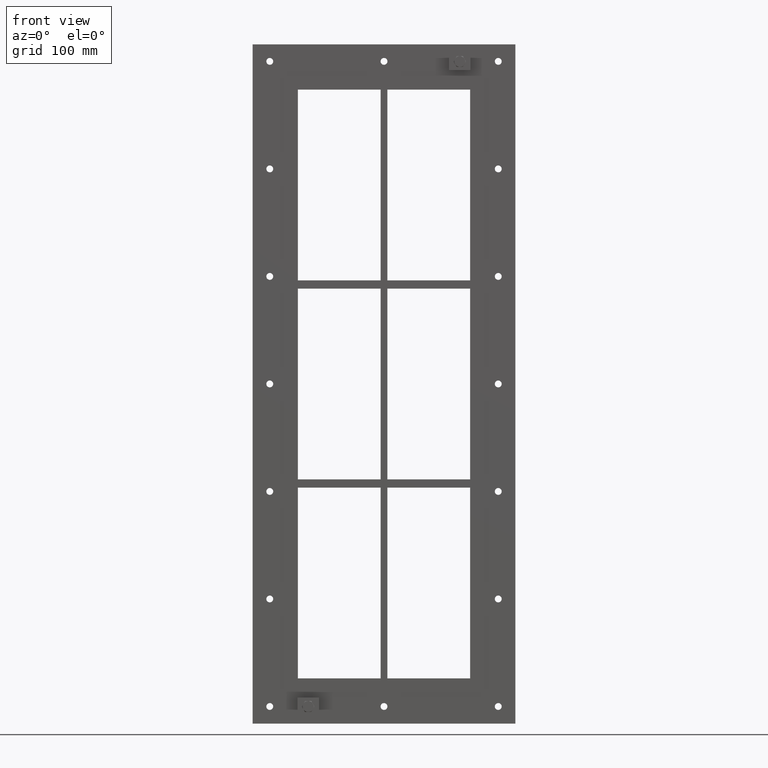
[diagram: clean part render]
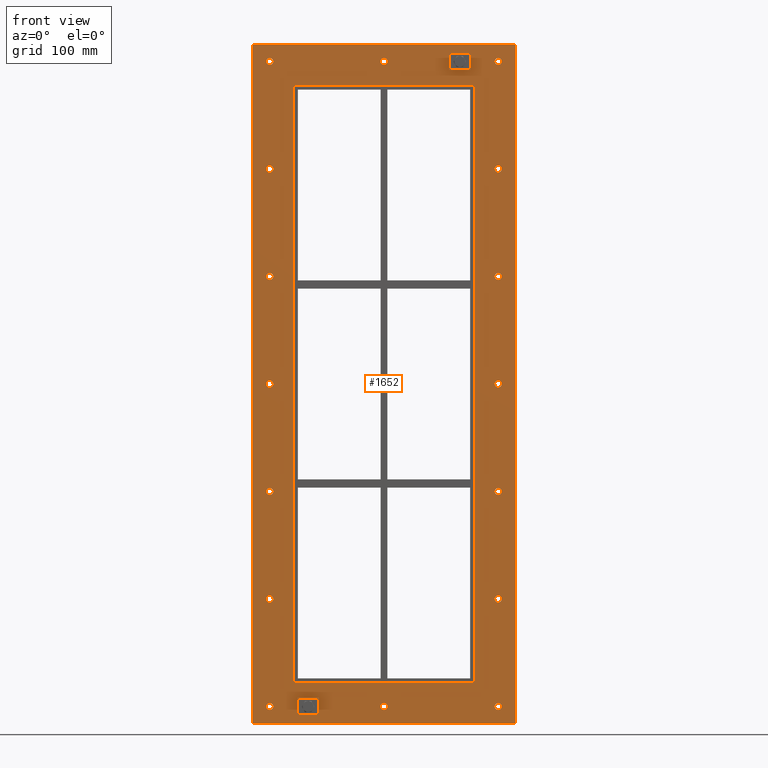
[diagram: same view with one face highlighted and labeled with its STEP entity id]
A machine part, front view. The second image highlights one B-rep face of the part: STEP entity #1652.
In plain terms, the highlighted planar face has unit normal (0, 1, 0).
Its self-contained STEP definition (entity closure, byte-faithful):
#84=CARTESIAN_POINT('',(-161.50000000000011,0.0,-470.00000000000011));
#85=VERTEX_POINT('',#84);
#86=CARTESIAN_POINT('',(-166.50000000000011,0.0,-470.00000000000011));
#87=DIRECTION('',(0.0,1.0,0.0));
#88=DIRECTION('',(1.0,0.0,0.0));
#89=AXIS2_PLACEMENT_3D('',#86,#87,#88);
#90=CIRCLE('',#89,5.0);
#91=EDGE_CURVE('',#85,#85,#90,.T.);
#112=CARTESIAN_POINT('',(171.49999999999991,0.0,-313.30000000000013));
#113=VERTEX_POINT('',#112);
#114=CARTESIAN_POINT('',(166.49999999999991,0.0,-313.30000000000013));
#115=DIRECTION('',(0.0,1.0,0.0));
#116=DIRECTION('',(1.0,0.0,0.0));
#117=AXIS2_PLACEMENT_3D('',#114,#115,#116);
#118=CIRCLE('',#117,5.0);
#119=EDGE_CURVE('',#113,#113,#118,.T.);
#140=CARTESIAN_POINT('',(-161.50000000000011,0.0,-313.30000000000013));
#141=VERTEX_POINT('',#140);
#142=CARTESIAN_POINT('',(-166.50000000000011,0.0,-313.30000000000013));
#143=DIRECTION('',(0.0,1.0,0.0));
#144=DIRECTION('',(1.0,0.0,0.0));
#145=AXIS2_PLACEMENT_3D('',#142,#143,#144);
#146=CIRCLE('',#145,5.0);
#147=EDGE_CURVE('',#141,#141,#146,.T.);
#168=CARTESIAN_POINT('',(171.49999999999991,0.0,-156.60000000000016));
#169=VERTEX_POINT('',#168);
#170=CARTESIAN_POINT('',(166.49999999999991,0.0,-156.60000000000016));
#171=DIRECTION('',(0.0,1.0,0.0));
#172=DIRECTION('',(1.0,0.0,0.0));
#173=AXIS2_PLACEMENT_3D('',#170,#171,#172);
#174=CIRCLE('',#173,5.0);
#175=EDGE_CURVE('',#169,#169,#174,.T.);
#196=CARTESIAN_POINT('',(-161.50000000000011,0.0,-156.60000000000016));
#197=VERTEX_POINT('',#196);
#198=CARTESIAN_POINT('',(-166.50000000000011,0.0,-156.60000000000016));
#199=DIRECTION('',(0.0,1.0,0.0));
#200=DIRECTION('',(1.0,0.0,0.0));
#201=AXIS2_PLACEMENT_3D('',#198,#199,#200);
#202=CIRCLE('',#201,5.0);
#203=EDGE_CURVE('',#197,#197,#202,.T.);
#224=CARTESIAN_POINT('',(171.49999999999991,0.0,0.099999999999856));
#225=VERTEX_POINT('',#224);
#226=CARTESIAN_POINT('',(166.49999999999991,0.0,0.099999999999856));
#227=DIRECTION('',(0.0,1.0,0.0));
#228=DIRECTION('',(1.0,0.0,0.0));
#229=AXIS2_PLACEMENT_3D('',#226,#227,#228);
#230=CIRCLE('',#229,5.0);
#231=EDGE_CURVE('',#225,#225,#230,.T.);
#252=CARTESIAN_POINT('',(-161.50000000000011,0.0,0.099999999999856));
#253=VERTEX_POINT('',#252);
#254=CARTESIAN_POINT('',(-166.50000000000011,0.0,0.099999999999856));
#255=DIRECTION('',(0.0,1.0,0.0));
#256=DIRECTION('',(1.0,0.0,0.0));
#257=AXIS2_PLACEMENT_3D('',#254,#255,#256);
#258=CIRCLE('',#257,5.0);
#259=EDGE_CURVE('',#253,#253,#258,.T.);
#280=CARTESIAN_POINT('',(171.49999999999991,0.0,156.79999999999981));
#281=VERTEX_POINT('',#280);
#282=CARTESIAN_POINT('',(166.49999999999991,0.0,156.79999999999981));
#283=DIRECTION('',(0.0,1.0,0.0));
#284=DIRECTION('',(1.0,0.0,0.0));
#285=AXIS2_PLACEMENT_3D('',#282,#283,#284);
#286=CIRCLE('',#285,5.0);
#287=EDGE_CURVE('',#281,#281,#286,.T.);
#308=CARTESIAN_POINT('',(-161.50000000000011,0.0,156.79999999999981));
#309=VERTEX_POINT('',#308);
#310=CARTESIAN_POINT('',(-166.50000000000011,0.0,156.79999999999981));
#311=DIRECTION('',(0.0,1.0,0.0));
#312=DIRECTION('',(1.0,0.0,0.0));
#313=AXIS2_PLACEMENT_3D('',#310,#311,#312);
#314=CIRCLE('',#313,5.0);
#315=EDGE_CURVE('',#309,#309,#314,.T.);
#336=CARTESIAN_POINT('',(171.49999999999991,0.0,313.49999999999977));
#337=VERTEX_POINT('',#336);
#338=CARTESIAN_POINT('',(166.49999999999991,0.0,313.49999999999977));
#339=DIRECTION('',(0.0,1.0,0.0));
#340=DIRECTION('',(1.0,0.0,0.0));
#341=AXIS2_PLACEMENT_3D('',#338,#339,#340);
#342=CIRCLE('',#341,5.0);
#343=EDGE_CURVE('',#337,#337,#342,.T.);
#364=CARTESIAN_POINT('',(-161.50000000000011,0.0,313.49999999999977));
#365=VERTEX_POINT('',#364);
#366=CARTESIAN_POINT('',(-166.50000000000011,0.0,313.49999999999977));
#367=DIRECTION('',(0.0,1.0,0.0));
#368=DIRECTION('',(1.0,0.0,0.0));
#369=AXIS2_PLACEMENT_3D('',#366,#367,#368);
#370=CIRCLE('',#369,5.0);
#371=EDGE_CURVE('',#365,#365,#370,.T.);
#392=CARTESIAN_POINT('',(4.999999999999893,0.0,470.19999999999982));
#393=VERTEX_POINT('',#392);
#394=CARTESIAN_POINT('',(-1.065814E-013,0.0,470.19999999999982));
#395=DIRECTION('',(0.0,1.0,0.0));
#396=DIRECTION('',(1.0,0.0,0.0));
#397=AXIS2_PLACEMENT_3D('',#394,#395,#396);
#398=CIRCLE('',#397,5.0);
#399=EDGE_CURVE('',#393,#393,#398,.T.);
#420=CARTESIAN_POINT('',(4.999999999999893,0.0,-470.00000000000011));
#421=VERTEX_POINT('',#420);
#422=CARTESIAN_POINT('',(-1.065814E-013,0.0,-470.00000000000011));
#423=DIRECTION('',(0.0,1.0,0.0));
#424=DIRECTION('',(1.0,0.0,0.0));
#425=AXIS2_PLACEMENT_3D('',#422,#423,#424);
#426=CIRCLE('',#425,5.0);
#427=EDGE_CURVE('',#421,#421,#426,.T.);
#448=CARTESIAN_POINT('',(171.49999999999991,0.0,-470.00000000000011));
#449=VERTEX_POINT('',#448);
#450=CARTESIAN_POINT('',(166.49999999999991,0.0,-470.00000000000011));
#451=DIRECTION('',(0.0,1.0,0.0));
#452=DIRECTION('',(1.0,0.0,0.0));
#453=AXIS2_PLACEMENT_3D('',#450,#451,#452);
#454=CIRCLE('',#453,5.0);
#455=EDGE_CURVE('',#449,#449,#454,.T.);
#476=CARTESIAN_POINT('',(-161.50000000000011,0.0,470.19999999999982));
#477=VERTEX_POINT('',#476);
#478=CARTESIAN_POINT('',(-166.50000000000011,0.0,470.19999999999982));
#479=DIRECTION('',(0.0,1.0,0.0));
#480=DIRECTION('',(1.0,0.0,0.0));
#481=AXIS2_PLACEMENT_3D('',#478,#479,#480);
#482=CIRCLE('',#481,5.0);
#483=EDGE_CURVE('',#477,#477,#482,.T.);
#504=CARTESIAN_POINT('',(171.49999999999991,0.0,470.19999999999982));
#505=VERTEX_POINT('',#504);
#506=CARTESIAN_POINT('',(166.49999999999991,0.0,470.19999999999982));
#507=DIRECTION('',(0.0,1.0,0.0));
#508=DIRECTION('',(1.0,0.0,0.0));
#509=AXIS2_PLACEMENT_3D('',#506,#507,#508);
#510=CIRCLE('',#509,5.0);
#511=EDGE_CURVE('',#505,#505,#510,.T.);
#1495=CARTESIAN_POINT('',(0.0,0.0,-3.726080E-014));
#1496=DIRECTION('',(0.0,1.0,0.0));
#1497=DIRECTION('',(0.0,0.0,1.0));
#1498=AXIS2_PLACEMENT_3D('',#1495,#1496,#1497);
#1499=PLANE('',#1498);
#1500=CARTESIAN_POINT('',(-191.5,0.0,495.00000000000006));
#1501=VERTEX_POINT('',#1500);
#1502=CARTESIAN_POINT('',(191.5,0.0,495.00000000000006));
#1503=VERTEX_POINT('',#1502);
#1504=CARTESIAN_POINT('',(-191.5,0.0,495.00000000000006));
#1505=DIRECTION('',(1.0,0.0,0.0));
#1506=VECTOR('',#1505,383.0);
#1507=LINE('',#1504,#1506);
#1508=EDGE_CURVE('',#1501,#1503,#1507,.T.);
#1509=ORIENTED_EDGE('',*,*,#1508,.F.);
#1510=CARTESIAN_POINT('',(-191.5,0.0,-495.00000000000011));
#1511=VERTEX_POINT('',#1510);
#1512=CARTESIAN_POINT('',(-191.5,0.0,-495.00000000000011));
#1513=DIRECTION('',(0.0,0.0,1.0));
#1514=VECTOR('',#1513,990.00000000000023);
#1515=LINE('',#1512,#1514);
#1516=EDGE_CURVE('',#1511,#1501,#1515,.T.);
#1517=ORIENTED_EDGE('',*,*,#1516,.F.);
#1518=CARTESIAN_POINT('',(191.5,0.0,-495.00000000000011));
#1519=VERTEX_POINT('',#1518);
#1520=CARTESIAN_POINT('',(191.5,0.0,-495.00000000000011));
#1521=DIRECTION('',(-1.0,0.0,0.0));
#1522=VECTOR('',#1521,383.0);
#1523=LINE('',#1520,#1522);
#1524=EDGE_CURVE('',#1519,#1511,#1523,.T.);
#1525=ORIENTED_EDGE('',*,*,#1524,.F.);
#1526=CARTESIAN_POINT('',(191.5,0.0,495.00000000000006));
#1527=DIRECTION('',(0.0,0.0,-1.0));
#1528=VECTOR('',#1527,990.00000000000023);
#1529=LINE('',#1526,#1528);
#1530=EDGE_CURVE('',#1503,#1519,#1529,.T.);
#1531=ORIENTED_EDGE('',*,*,#1530,.F.);
#1532=EDGE_LOOP('',(#1509,#1517,#1525,#1531));
#1533=FACE_OUTER_BOUND('',#1532,.T.);
#1534=ORIENTED_EDGE('',*,*,#91,.T.);
#1535=EDGE_LOOP('',(#1534));
#1536=FACE_BOUND('',#1535,.T.);
#1537=ORIENTED_EDGE('',*,*,#119,.T.);
#1538=EDGE_LOOP('',(#1537));
#1539=FACE_BOUND('',#1538,.T.);
#1540=ORIENTED_EDGE('',*,*,#147,.T.);
#1541=EDGE_LOOP('',(#1540));
#1542=FACE_BOUND('',#1541,.T.);
#1543=ORIENTED_EDGE('',*,*,#175,.T.);
#1544=EDGE_LOOP('',(#1543));
#1545=FACE_BOUND('',#1544,.T.);
#1546=ORIENTED_EDGE('',*,*,#203,.T.);
#1547=EDGE_LOOP('',(#1546));
#1548=FACE_BOUND('',#1547,.T.);
#1549=ORIENTED_EDGE('',*,*,#231,.T.);
#1550=EDGE_LOOP('',(#1549));
#1551=FACE_BOUND('',#1550,.T.);
#1552=ORIENTED_EDGE('',*,*,#259,.T.);
#1553=EDGE_LOOP('',(#1552));
#1554=FACE_BOUND('',#1553,.T.);
#1555=ORIENTED_EDGE('',*,*,#287,.T.);
#1556=EDGE_LOOP('',(#1555));
#1557=FACE_BOUND('',#1556,.T.);
#1558=ORIENTED_EDGE('',*,*,#315,.T.);
#1559=EDGE_LOOP('',(#1558));
#1560=FACE_BOUND('',#1559,.T.);
#1561=ORIENTED_EDGE('',*,*,#343,.T.);
#1562=EDGE_LOOP('',(#1561));
#1563=FACE_BOUND('',#1562,.T.);
#1564=ORIENTED_EDGE('',*,*,#371,.T.);
#1565=EDGE_LOOP('',(#1564));
#1566=FACE_BOUND('',#1565,.T.);
#1567=ORIENTED_EDGE('',*,*,#399,.T.);
#1568=EDGE_LOOP('',(#1567));
#1569=FACE_BOUND('',#1568,.T.);
#1570=ORIENTED_EDGE('',*,*,#427,.T.);
#1571=EDGE_LOOP('',(#1570));
#1572=FACE_BOUND('',#1571,.T.);
#1573=ORIENTED_EDGE('',*,*,#455,.T.);
#1574=EDGE_LOOP('',(#1573));
#1575=FACE_BOUND('',#1574,.T.);
#1576=ORIENTED_EDGE('',*,*,#483,.T.);
#1577=EDGE_LOOP('',(#1576));
#1578=FACE_BOUND('',#1577,.T.);
#1579=ORIENTED_EDGE('',*,*,#511,.T.);
#1580=EDGE_LOOP('',(#1579));
#1581=FACE_BOUND('',#1580,.T.);
#1582=CARTESIAN_POINT('',(-129.50000000000003,0.0,435.00000000000006));
#1583=VERTEX_POINT('',#1582);
#1584=CARTESIAN_POINT('',(-131.50000000000003,0.0,433.00000000000006));
#1585=VERTEX_POINT('',#1584);
#1586=CARTESIAN_POINT('',(-129.50000000000003,0.0,433.00000000000006));
#1587=DIRECTION('',(0.0,-1.0,0.0));
#1588=DIRECTION('',(-0.707106781186541,0.0,0.707106781186554));
#1589=AXIS2_PLACEMENT_3D('',#1586,#1587,#1588);
#1590=CIRCLE('',#1589,2.0);
#1591=EDGE_CURVE('',#1583,#1585,#1590,.T.);
#1592=ORIENTED_EDGE('',*,*,#1591,.F.);
#1593=CARTESIAN_POINT('',(129.5,0.0,435.00000000000006));
#1594=VERTEX_POINT('',#1593);
#1595=CARTESIAN_POINT('',(129.5,0.0,435.00000000000006));
#1596=DIRECTION('',(-1.0,0.0,0.0));
#1597=VECTOR('',#1596,259.0);
#1598=LINE('',#1595,#1597);
#1599=EDGE_CURVE('',#1594,#1583,#1598,.T.);
#1600=ORIENTED_EDGE('',*,*,#1599,.F.);
#1601=CARTESIAN_POINT('',(131.5,0.0,433.00000000000006));
#1602=VERTEX_POINT('',#1601);
#1603=CARTESIAN_POINT('',(129.5,0.0,433.00000000000006));
#1604=DIRECTION('',(0.0,-1.0,0.0));
#1605=DIRECTION('',(0.707106781186541,0.0,0.707106781186554));
#1606=AXIS2_PLACEMENT_3D('',#1603,#1604,#1605);
#1607=CIRCLE('',#1606,2.0);
#1608=EDGE_CURVE('',#1602,#1594,#1607,.T.);
#1609=ORIENTED_EDGE('',*,*,#1608,.F.);
#1610=CARTESIAN_POINT('',(131.5,0.0,-433.00000000000006));
#1611=VERTEX_POINT('',#1610);
#1612=CARTESIAN_POINT('',(131.5,0.0,-433.00000000000011));
#1613=DIRECTION('',(0.0,0.0,1.0));
#1614=VECTOR('',#1613,866.00000000000023);
#1615=LINE('',#1612,#1614);
#1616=EDGE_CURVE('',#1611,#1602,#1615,.T.);
#1617=ORIENTED_EDGE('',*,*,#1616,.F.);
#1618=CARTESIAN_POINT('',(129.5,0.0,-435.00000000000006));
#1619=VERTEX_POINT('',#1618);
#1620=CARTESIAN_POINT('',(129.5,0.0,-433.00000000000006));
#1621=DIRECTION('',(0.0,-1.0,0.0));
#1622=DIRECTION('',(0.707106781186541,0.0,-0.707106781186554));
#1623=AXIS2_PLACEMENT_3D('',#1620,#1621,#1622);
#1624=CIRCLE('',#1623,2.0);
#1625=EDGE_CURVE('',#1619,#1611,#1624,.T.);
#1626=ORIENTED_EDGE('',*,*,#1625,.F.);
#1627=CARTESIAN_POINT('',(-129.50000000000003,0.0,-435.00000000000006));
#1628=VERTEX_POINT('',#1627);
#1629=CARTESIAN_POINT('',(-129.50000000000003,0.0,-435.00000000000006));
#1630=DIRECTION('',(1.0,0.0,0.0));
#1631=VECTOR('',#1630,259.0);
#1632=LINE('',#1629,#1631);
#1633=EDGE_CURVE('',#1628,#1619,#1632,.T.);
#1634=ORIENTED_EDGE('',*,*,#1633,.F.);
#1635=CARTESIAN_POINT('',(-131.50000000000003,0.0,-433.00000000000006));
#1636=VERTEX_POINT('',#1635);
#1637=CARTESIAN_POINT('',(-129.50000000000003,0.0,-433.00000000000006));
#1638=DIRECTION('',(0.0,-1.0,0.0));
#1639=DIRECTION('',(-0.707106781186541,0.0,-0.707106781186554));
#1640=AXIS2_PLACEMENT_3D('',#1637,#1638,#1639);
#1641=CIRCLE('',#1640,2.0);
#1642=EDGE_CURVE('',#1636,#1628,#1641,.T.);
#1643=ORIENTED_EDGE('',*,*,#1642,.F.);
#1644=CARTESIAN_POINT('',(-131.50000000000003,0.0,433.00000000000006));
#1645=DIRECTION('',(0.0,0.0,-1.0));
#1646=VECTOR('',#1645,866.0);
#1647=LINE('',#1644,#1646);
#1648=EDGE_CURVE('',#1585,#1636,#1647,.T.);
#1649=ORIENTED_EDGE('',*,*,#1648,.F.);
#1650=EDGE_LOOP('',(#1592,#1600,#1609,#1617,#1626,#1634,#1643,#1649));
#1651=FACE_BOUND('',#1650,.T.);
#1652=ADVANCED_FACE('',(#1533,#1536,#1539,#1542,#1545,#1548,#1551,#1554,#1557,#1560,#1563,#1566,#1569,#1572,#1575,#1578,#1581,#1651),#1499,.F.);